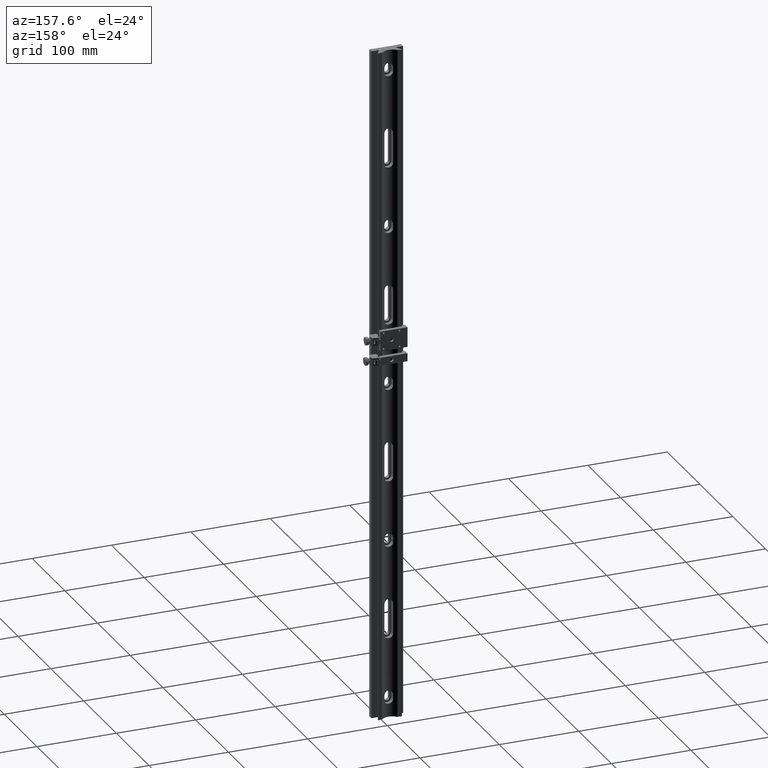
[diagram: clean part render]
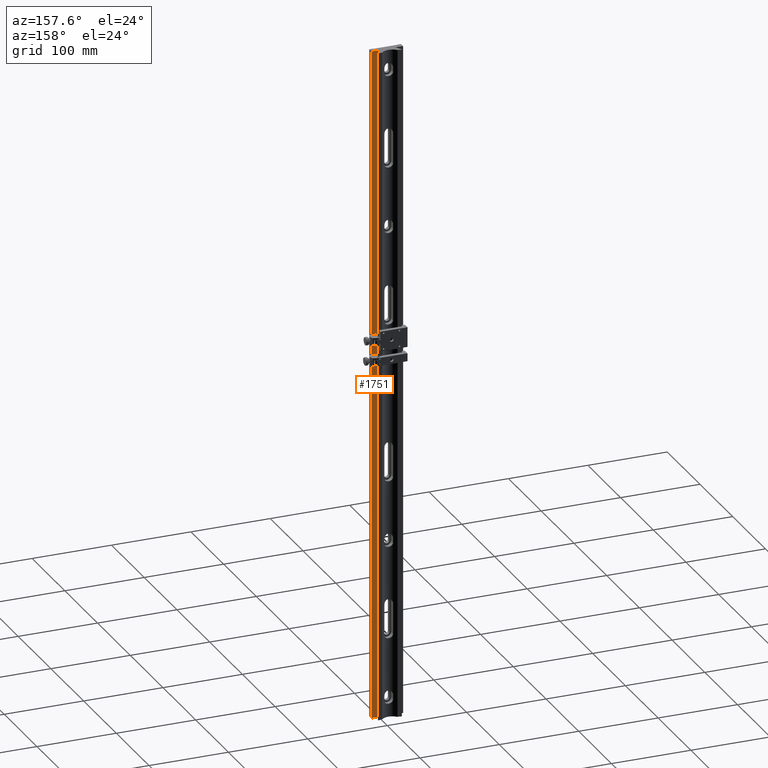
[diagram: same view with one face highlighted and labeled with its STEP entity id]
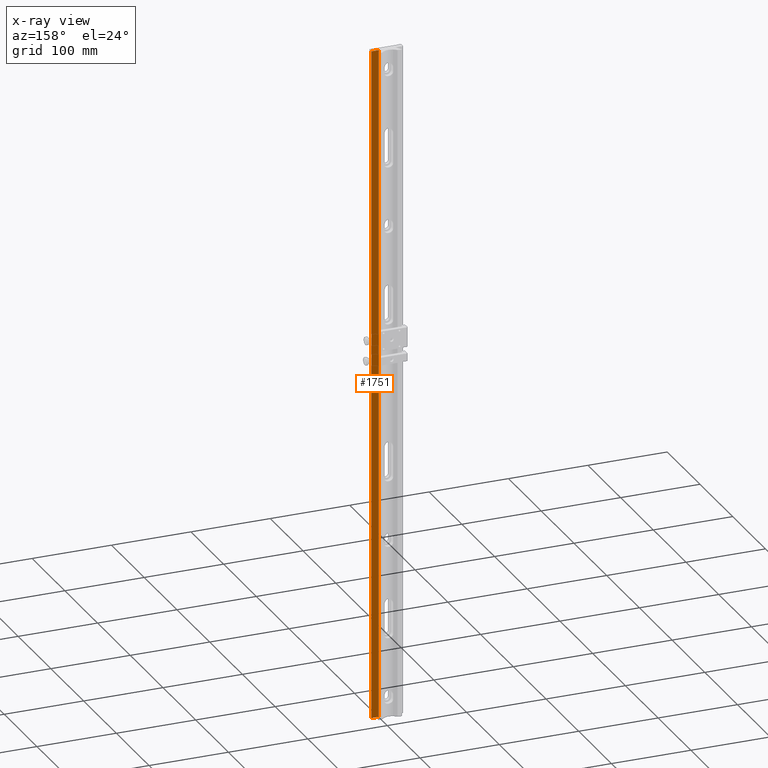
[diagram: x-ray of the same camera — body ghosted, the highlighted face saturated]
A machine part, auxiliary view. The second image highlights one B-rep face of the part: STEP entity #1751.
The next image is the same camera in x-ray: the body ghosted, the highlighted face saturated — about 0% of this face is hidden behind the body in this view.
In plain terms, the highlighted planar face has unit normal (0, -1, 0).
Its self-contained STEP definition (entity closure, byte-faithful):
#157 = VECTOR ( 'NONE', #4723, 1000.000000000000000 ) ;
#581 = VERTEX_POINT ( 'NONE', #1672 ) ;
#584 = ORIENTED_EDGE ( 'NONE', *, *, #6229, .T. ) ;
#791 = LINE ( 'NONE', #4841, #5493 ) ;
#991 = VERTEX_POINT ( 'NONE', #8680 ) ;
#1146 = CARTESIAN_POINT ( 'NONE',  ( 20.00000000000000000, -425.0000000000000000, -4.898587196589413026E-15 ) ) ;
#1215 = CARTESIAN_POINT ( 'NONE',  ( 10.59252271188812777, 425.0000000000000000, -2.594419806801887381E-15 ) ) ;
#1470 = DIRECTION ( 'NONE',  ( -0.000000000000000000, -1.000000000000000000, -0.000000000000000000 ) ) ;
#1631 = EDGE_CURVE ( 'NONE', #8446, #581, #2125, .T. ) ;
#1672 = CARTESIAN_POINT ( 'NONE',  ( 10.59252271188812777, -425.0000000000000000, -2.594419806801887381E-15 ) ) ;
#1751 = ADVANCED_FACE ( 'NONE', ( #3998 ), #6685, .F. ) ;
#2125 = LINE ( 'NONE', #6877, #7968 ) ;
#2818 = CARTESIAN_POINT ( 'NONE',  ( 20.00000000000000000, 425.0000000000000000, -4.898587196589413026E-15 ) ) ;
#2862 = ORIENTED_EDGE ( 'NONE', *, *, #5304, .F. ) ;
#3614 = DIRECTION ( 'NONE',  ( -1.000000000000000000, 0.000000000000000000, 2.449293598294706414E-16 ) ) ;
#3998 = FACE_OUTER_BOUND ( 'NONE', #4340, .T. ) ;
#4280 = LINE ( 'NONE', #8025, #6201 ) ;
#4340 = EDGE_LOOP ( 'NONE', ( #5939, #6865, #2862, #584 ) ) ;
#4723 = DIRECTION ( 'NONE',  ( -0.000000000000000000, -1.000000000000000000, -0.000000000000000000 ) ) ;
#4841 = CARTESIAN_POINT ( 'NONE',  ( 20.00000000000000000, -425.0000000000000000, -4.898587196589413026E-15 ) ) ;
#5304 = EDGE_CURVE ( 'NONE', #991, #8446, #4280, .T. ) ;
#5493 = VECTOR ( 'NONE', #6726, 1000.000000000000000 ) ;
#5939 = ORIENTED_EDGE ( 'NONE', *, *, #7640, .T. ) ;
#6201 = VECTOR ( 'NONE', #3614, 1000.000000000000000 ) ;
#6229 = EDGE_CURVE ( 'NONE', #991, #6670, #6788, .T. ) ;
#6321 = AXIS2_PLACEMENT_3D ( 'NONE', #8176, #6727, #7172 ) ;
#6670 = VERTEX_POINT ( 'NONE', #1146 ) ;
#6685 = PLANE ( 'NONE',  #6321 ) ;
#6726 = DIRECTION ( 'NONE',  ( -1.000000000000000000, 0.000000000000000000, 2.449293598294706414E-16 ) ) ;
#6727 = DIRECTION ( 'NONE',  ( 2.449293598294706414E-16, -0.000000000000000000, 1.000000000000000000 ) ) ;
#6788 = LINE ( 'NONE', #2818, #157 ) ;
#6865 = ORIENTED_EDGE ( 'NONE', *, *, #1631, .F. ) ;
#6877 = CARTESIAN_POINT ( 'NONE',  ( 10.59252271188812777, 425.0000000000000000, -2.594419806801887381E-15 ) ) ;
#7172 = DIRECTION ( 'NONE',  ( 1.000000000000000000, 0.000000000000000000, -2.449293598294706414E-16 ) ) ;
#7640 = EDGE_CURVE ( 'NONE', #6670, #581, #791, .T. ) ;
#7968 = VECTOR ( 'NONE', #1470, 1000.000000000000000 ) ;
#8025 = CARTESIAN_POINT ( 'NONE',  ( 20.00000000000000000, 425.0000000000000000, -4.898587196589413026E-15 ) ) ;
#8176 = CARTESIAN_POINT ( 'NONE',  ( 20.00000000000000000, 425.0000000000000000, -4.898587196589413026E-15 ) ) ;
#8446 = VERTEX_POINT ( 'NONE', #1215 ) ;
#8680 = CARTESIAN_POINT ( 'NONE',  ( 20.00000000000000000, 425.0000000000000000, -4.898587196589413026E-15 ) ) ;